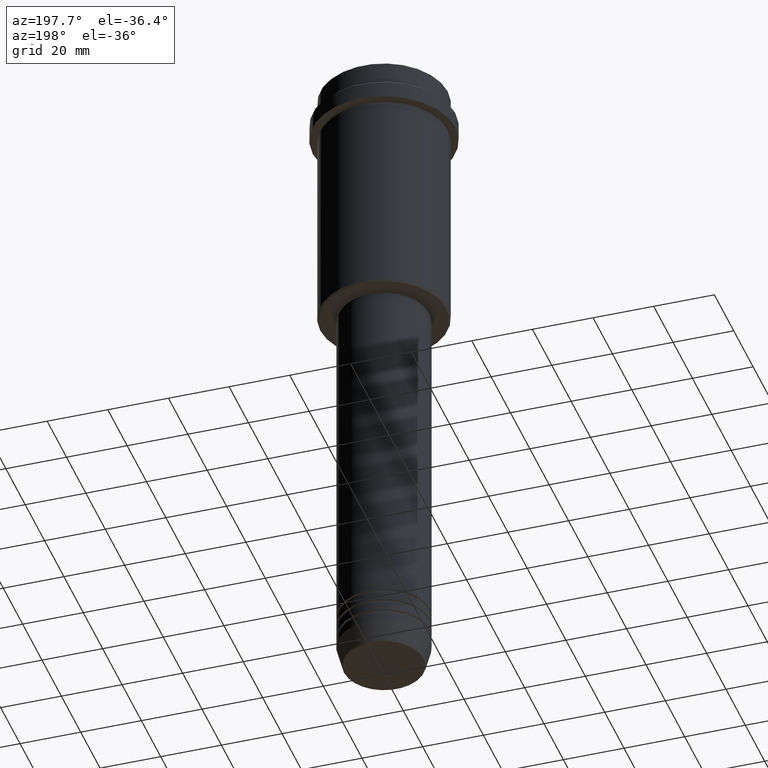
[diagram: clean part render]
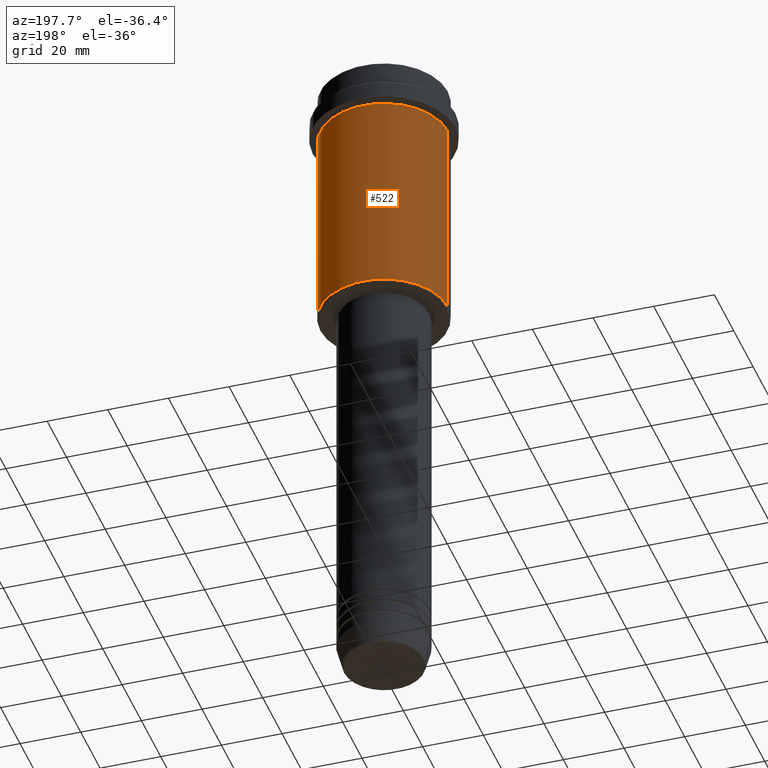
[diagram: same view with one face highlighted and labeled with its STEP entity id]
A machine part, auxiliary view. The second image highlights one B-rep face of the part: STEP entity #522.
In plain terms, the highlighted cylindrical surface (partial cylindrical patch) has radius 21 mm, axis along (-0, -0, 1).
Its self-contained STEP definition (entity closure, byte-faithful):
#96 = DIRECTION ( 'NONE',  ( -1.000000000000000000, 0.000000000000000000, 0.000000000000000000 ) ) ;
#104 = DIRECTION ( 'NONE',  ( -0.000000000000000000, -0.000000000000000000, 1.000000000000000000 ) ) ;
#106 = DIRECTION ( 'NONE',  ( -0.000000000000000000, -0.000000000000000000, 1.000000000000000000 ) ) ;
#112 = LINE ( 'NONE', #1081, #1083 ) ;
#155 = EDGE_LOOP ( 'NONE', ( #253, #1326, #586, #361 ) ) ;
#169 = CIRCLE ( 'NONE', #740, 20.99999999999999645 ) ;
#196 = CARTESIAN_POINT ( 'NONE',  ( 0.000000000000000000, 0.000000000000000000, -84.49999999999998579 ) ) ;
#203 = EDGE_CURVE ( 'NONE', #394, #354, #1077, .T. ) ;
#232 = VECTOR ( 'NONE', #334, 1000.000000000000000 ) ;
#253 = ORIENTED_EDGE ( 'NONE', *, *, #1285, .T. ) ;
#304 = CARTESIAN_POINT ( 'NONE',  ( 0.000000000000000000, 0.000000000000000000, 0.000000000000000000 ) ) ;
#334 = DIRECTION ( 'NONE',  ( -0.000000000000000000, -0.000000000000000000, 1.000000000000000000 ) ) ;
#354 = VERTEX_POINT ( 'NONE', #976 ) ;
#361 = ORIENTED_EDGE ( 'NONE', *, *, #988, .F. ) ;
#394 = VERTEX_POINT ( 'NONE', #1323 ) ;
#401 = DIRECTION ( 'NONE',  ( -0.000000000000000000, -0.000000000000000000, 1.000000000000000000 ) ) ;
#419 = AXIS2_PLACEMENT_3D ( 'NONE', #618, #535, #737 ) ;
#522 = ADVANCED_FACE ( 'NONE', ( #629 ), #1292, .T. ) ;
#528 = DIRECTION ( 'NONE',  ( 1.000000000000000000, 0.000000000000000000, 0.000000000000000000 ) ) ;
#535 = DIRECTION ( 'NONE',  ( -0.000000000000000000, -0.000000000000000000, 1.000000000000000000 ) ) ;
#585 = VERTEX_POINT ( 'NONE', #1268 ) ;
#586 = ORIENTED_EDGE ( 'NONE', *, *, #203, .F. ) ;
#618 = CARTESIAN_POINT ( 'NONE',  ( 0.000000000000000000, 0.000000000000000000, -16.00000000000000355 ) ) ;
#629 = FACE_OUTER_BOUND ( 'NONE', #155, .T. ) ;
#737 = DIRECTION ( 'NONE',  ( 1.000000000000000000, 0.000000000000000000, 0.000000000000000000 ) ) ;
#740 = AXIS2_PLACEMENT_3D ( 'NONE', #196, #106, #96 ) ;
#792 = VERTEX_POINT ( 'NONE', #1127 ) ;
#976 = CARTESIAN_POINT ( 'NONE',  ( -20.99999999999999645, 2.571758278209441267E-15, -16.00000000000000355 ) ) ;
#988 = EDGE_CURVE ( 'NONE', #792, #394, #1311, .T. ) ;
#1077 = CIRCLE ( 'NONE', #419, 20.99999999999999645 ) ;
#1081 = CARTESIAN_POINT ( 'NONE',  ( -20.99999999999999645, 2.571758278209441267E-15, 0.000000000000000000 ) ) ;
#1083 = VECTOR ( 'NONE', #104, 1000.000000000000000 ) ;
#1087 = EDGE_CURVE ( 'NONE', #585, #354, #112, .T. ) ;
#1127 = CARTESIAN_POINT ( 'NONE',  ( 20.99999999999999645, 0.000000000000000000, -84.49999999999998579 ) ) ;
#1268 = CARTESIAN_POINT ( 'NONE',  ( -20.99999999999999645, 2.571758278209441267E-15, -84.49999999999998579 ) ) ;
#1285 = EDGE_CURVE ( 'NONE', #792, #585, #169, .T. ) ;
#1292 = CYLINDRICAL_SURFACE ( 'NONE', #1352, 20.99999999999999645 ) ;
#1295 = CARTESIAN_POINT ( 'NONE',  ( 20.99999999999999645, 0.000000000000000000, 0.000000000000000000 ) ) ;
#1311 = LINE ( 'NONE', #1295, #232 ) ;
#1323 = CARTESIAN_POINT ( 'NONE',  ( 20.99999999999999645, 0.000000000000000000, -16.00000000000000355 ) ) ;
#1326 = ORIENTED_EDGE ( 'NONE', *, *, #1087, .T. ) ;
#1352 = AXIS2_PLACEMENT_3D ( 'NONE', #304, #401, #528 ) ;